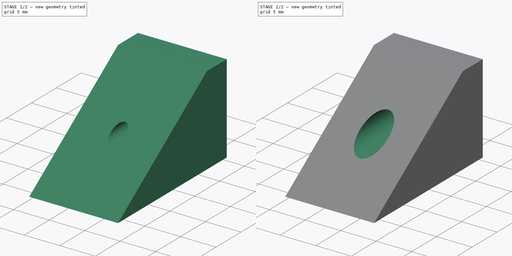
[diagram: build sequence overview — one tinted view per stage of 2, left to right]
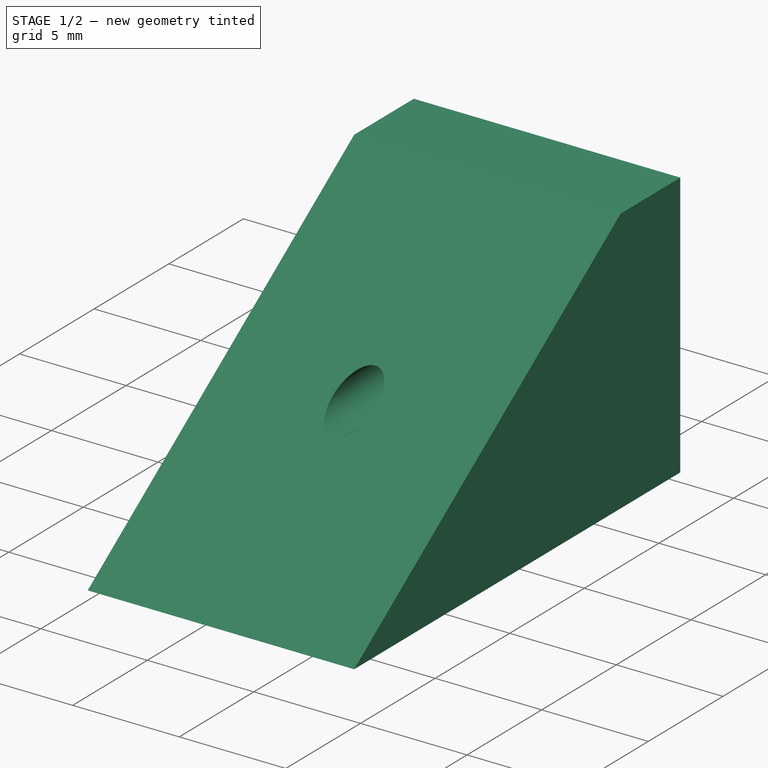
[diagram: stage 1 of 2 — iso view after this stage's code; geometry added in this stage tinted green]
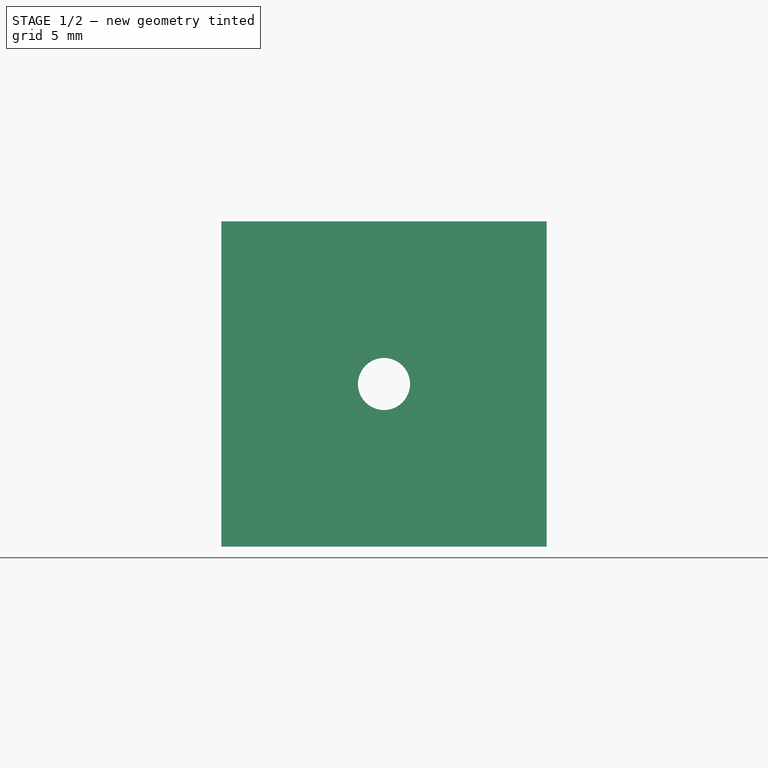
[diagram: stage 1 of 2 — front view after this stage's code; geometry added in this stage tinted green]
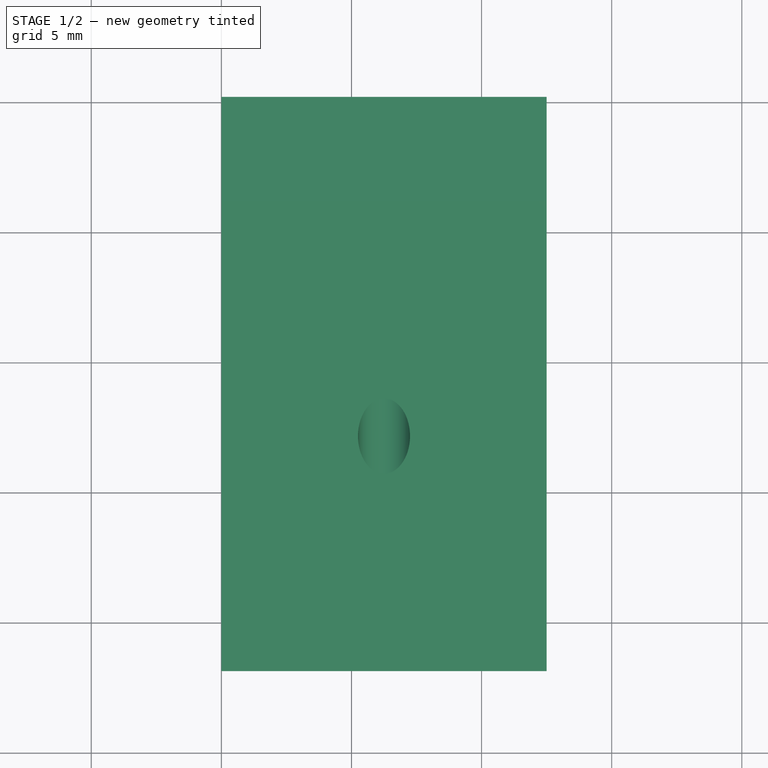
[diagram: stage 1 of 2 — top view after this stage's code; geometry added in this stage tinted green]
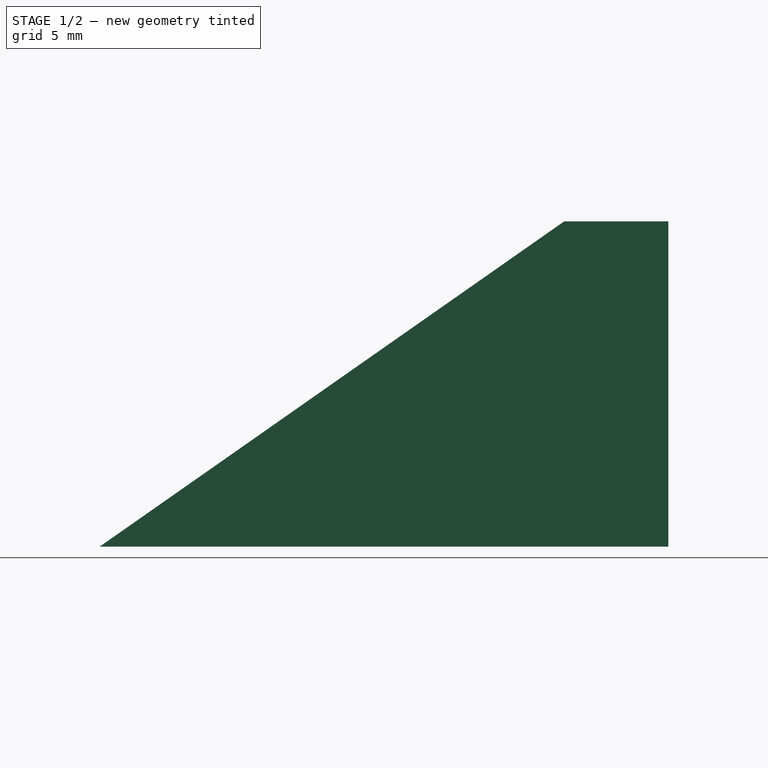
[diagram: stage 1 of 2 — right view after this stage's code; geometry added in this stage tinted green]
FCSTD DOCUMENT  (FreeCAD 1.0R39109 (Git))
Label: mount_bracket
License: All rights reserved
LicenseURL: https://en.wikipedia.org/wiki/All_rights_reserved
objects: Sketcher::SketchObject×3, PartDesign::Pocket×2, Spreadsheet::Sheet×1, PartDesign::Plane×1, PartDesign::Pad×1, PartDesign::Body×1
note: 17 computed .brp shape members not serialized (recipe doc carries the construction recipe); baked Part::Feature solids carry a one-line shape summary decoded from their .brp

FEATURE [Spreadsheet::Sheet] Spreadsheet  label="DisplaySS"
  Configuration = 1
  cells = A1='Variant; B1='threaded_insert_depth; C1='squared_profile_section_length; D1='threaded_insert_outer_diameter; E1='threaded_insert_safety_zone; F1='mount_bracket_face_size; G1='mount_bracket_length; H1='mount_bracket_draft_angle; I1='rear_countersink_offset; J1='rear_countersink_diameter; K1='rear_countersink_depth; A2==hiddenref(.Configuration.String); B2(threaded_insert_depth)==.B4; C2(squared_profile_section_length)==.C4; D2(threaded_insert_outer_diameter)==.D4; E2(threaded_insert_safety_zone)==.E4; F2(mount_bracket_face_size)==.F4; G2(mount_bracket_length)==.G4; H2(mount_bracket_draft_angle)==.H4; I2(rear_countersink_offset)==.I4; J2(rear_countersink_diameter)==.J4; K2(rear_countersink_depth)==.K4; A3='Female; B3==4 mm; C3==threaded_insert_depth; D3==5 mm; E3==2 mm; F3==12.5 mm; G3==mount_bracket_face_size / tan(mount_bracket_draft_angle) + threaded_insert_depth; H3==35 deg; I3==0 mm; J3==threaded_insert_outer_diameter; K3==threaded_insert_depth; A4='Male; B4==50 mm; C4==4 mm; D4==2 mm; E4==1 mm; F4==12.5 mm; G4==mount_bracket_face_size / tan(mount_bracket_draft_angle) + squared_profile_section_length; H4==35 deg; I4==squared_profile_section_length; J4==4 mm; K4==mount_bracket_length
  expr: .Configuration.Enum = cells[<<A3:|>>]
  expr: .cells.Bind.B2.ZZ2 = tuple(.cells; <<B>> + str(hiddenref(Configuration) + 3); <<ZZ>> + str(hiddenref(Configuration) + 3))
FEATURE [Sketcher::SketchObject] Sketch011  label="Threaded Barrel"
  ArcFitTolerance = 1e-06
  AttachmentSupport = -> [XZ_Plane003]
  FullyConstrained = true
  MakeInternals = false
  MapMode = 5
  Placement = pos=(0,0,0) rot=(1,0,0;1.5708rad)
  expr: Constraints[0] = <<DisplaySS>>.threaded_insert_outer_diameter
  expr: Constraints[1] = <<DisplaySS>>.mount_bracket_face_size / 2
  expr: Constraints[2] = <<DisplaySS>>.mount_bracket_face_size / 2
  sketch-geometry (1):
    g0: Circle CenterX=6.25 CenterY=6.25 CenterZ=0 NormalX=0 NormalY=0 NormalZ=1 AngleXU=0 Radius=1
  constraints (3):
    c: Diameter(g0) = 2
    c: DistanceY(g-1,g0) = 6.25
    c: DistanceX(g-2,g0) = 6.25
FEATURE [Sketcher::SketchObject] Sketch010
  ArcFitTolerance = 1e-06
  AttachmentSupport = -> [XY_Plane003]
  FullyConstrained = true
  MakeInternals = false
  MapMode = 4
  Placement = pos=(0,0,0) rot=(0.57735,0.57735,0.57735;2.0944rad)
  expr: Constraints[10] = <<DisplaySS>>.mount_bracket_face_size
  expr: Constraints[8] = <<DisplaySS>>.mount_bracket_draft_angle
  expr: Constraints[9] = <<DisplaySS>>.squared_profile_section_length
  sketch-geometry (4):
    g0: LineSegment StartX=-21.8519 StartY=-1.8e-15 StartZ=0 EndX=0 EndY=0 EndZ=0
    g1: LineSegment StartX=0 StartY=0 StartZ=0 EndX=0 EndY=12.5 EndZ=0
    g2: LineSegment StartX=0 StartY=12.5 StartZ=0 EndX=-4 EndY=12.5 EndZ=0
    g3: LineSegment StartX=-4 StartY=12.5 StartZ=0 EndX=-21.8519 EndY=-1.8e-15 EndZ=0
  constraints (11):
    c: PointOnObject(g0,g-1)
    c: Coincident(g0,g-1)
    c: Coincident(g0,g1)
    c: PointOnObject(g1,g-2)
    c: Coincident(g1,g2)
    c: Horizontal(g2)
    c: Coincident(g2,g3)
    c: Coincident(g3,g0)
    c: Angle(g0,g3) = 0.610865
    c: Distance(g2) = 4
    c: Distance(g1) = 12.5
FEATURE [PartDesign::Plane] DatumPlane  label="CountersinkPlane"
  AttachmentOffset = pos=(0,0,4) rot=(0,0,1;0rad)
  AttachmentSupport = -> [XZ_Plane003]
  Length = 60
  MapMode = 5
  Placement = pos=(0,-4,9e-16) rot=(1,0,0;1.5708rad)
  ResizeMode = 0
  Width = 60
  expr: .AttachmentOffset.Base.z = <<DisplaySS>>.rear_countersink_offset
FEATURE [Sketcher::SketchObject] Sketch  label="CountersinkSketch"
  ArcFitTolerance = 1e-06
  AttachmentSupport = -> [DatumPlane]
  ExternalGeometry = -> [Sketch011]
  FullyConstrained = true
  MakeInternals = false
  MapMode = 5
  Placement = pos=(0,-4,9e-16) rot=(1,0,0;1.5708rad)
  expr: Constraints[1] = <<DisplaySS>>.rear_countersink_diameter
  sketch-geometry (1):
    g0: Circle CenterX=6.25 CenterY=6.25 CenterZ=0 NormalX=0 NormalY=0 NormalZ=1 AngleXU=0 Radius=2
  constraints (2):
    c: Coincident(g0,g-3)
    c: Diameter(g0) = 4
FEATURE [PartDesign::Pad] Pad006
  Direction = (1,0,0)
  Length = 12.5
  Length2 = 10
  Profile = -> Sketch010
  ReferenceAxis = -> Sketch010 [N_Axis]
  Refine = true
  Suppressed = false
  Type = 0
  expr: Length = <<DisplaySS>>.mount_bracket_face_size
FEATURE [PartDesign::Pocket] Pocket015
  BaseFeature = -> Pad006
  Direction = (0,1,-2e-16)
  Length = 50
  Length2 = 5
  Profile = -> Sketch011
  ReferenceAxis = -> Sketch011 [N_Axis]
  Refine = true
  Reversed = true
  Suppressed = false
  Type = 0
  expr: Length = <<DisplaySS>>.threaded_insert_depth
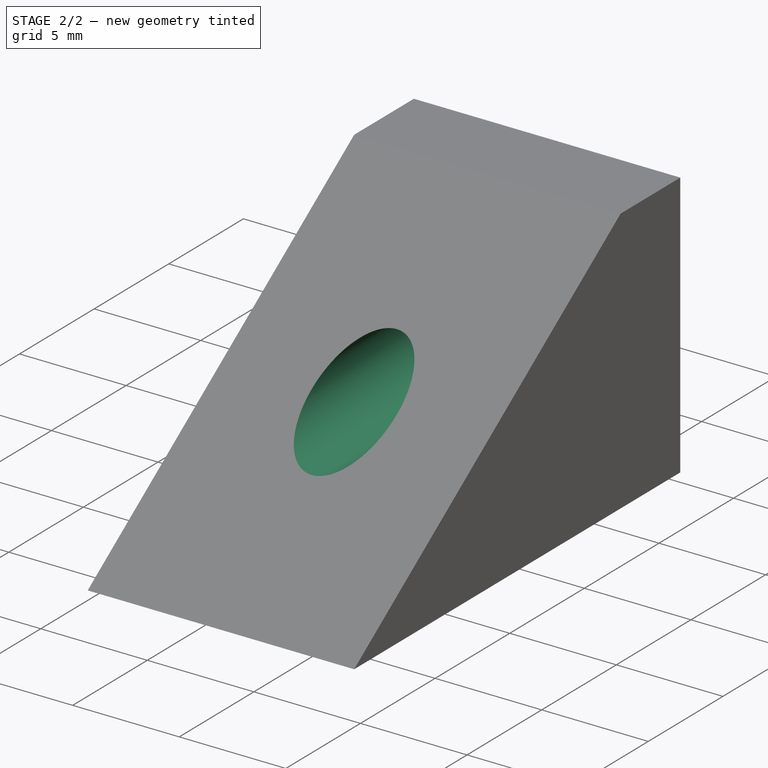
[diagram: stage 2 of 2 — iso view after this stage's code; geometry added in this stage tinted green]
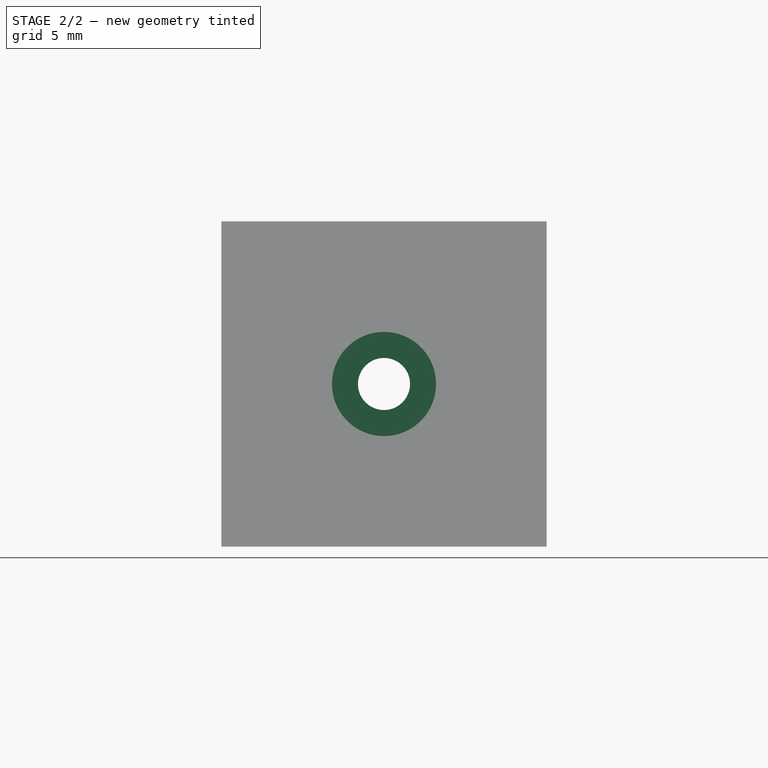
[diagram: stage 2 of 2 — front view after this stage's code; geometry added in this stage tinted green]
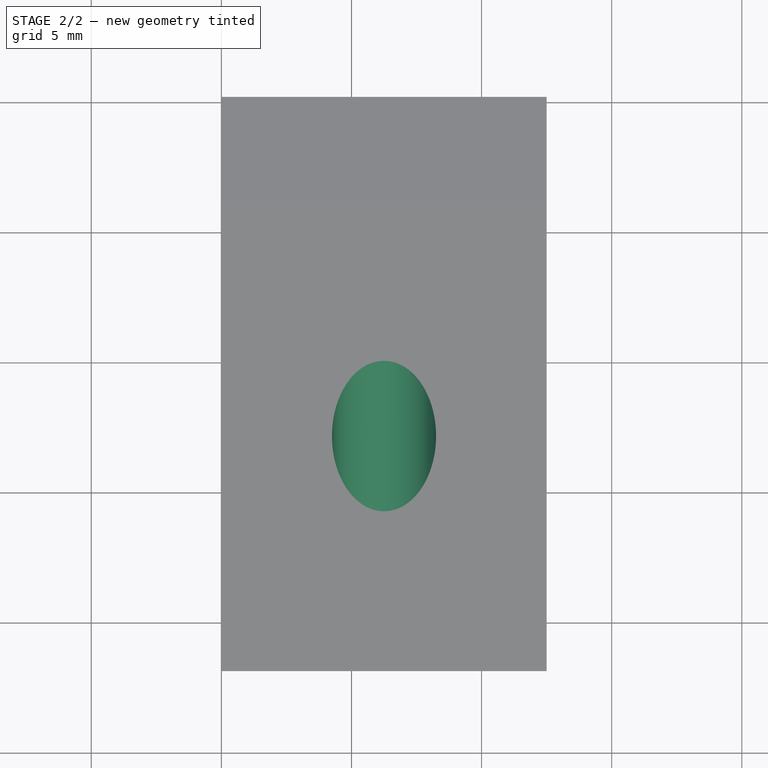
[diagram: stage 2 of 2 — top view after this stage's code; geometry added in this stage tinted green]
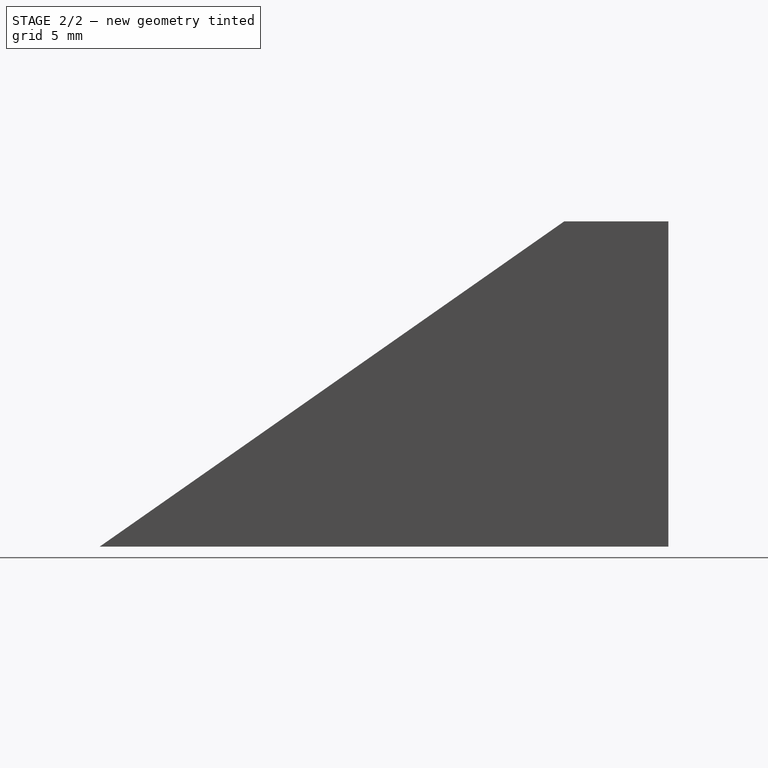
[diagram: stage 2 of 2 — right view after this stage's code; geometry added in this stage tinted green]
FEATURE [PartDesign::Pocket] Pocket
  BaseFeature = -> Pocket015
  Direction = (0,1,-2e-16)
  Length = 21.8519
  Length2 = 5
  Profile = -> Sketch
  ReferenceAxis = -> Sketch [N_Axis]
  Refine = true
  Reversed = true
  Suppressed = false
  Type = 0
  expr: Length = <<DisplaySS>>.rear_countersink_depth
FEATURE [PartDesign::Body] Body003  label="MountBracket"
  AllowCompound = false
  Group = -> [Sketch010,Pad006,Sketch011,Pocket015,Sketch,Pocket,DatumPlane]
  Origin = -> Origin003
  Tip = -> Pocket
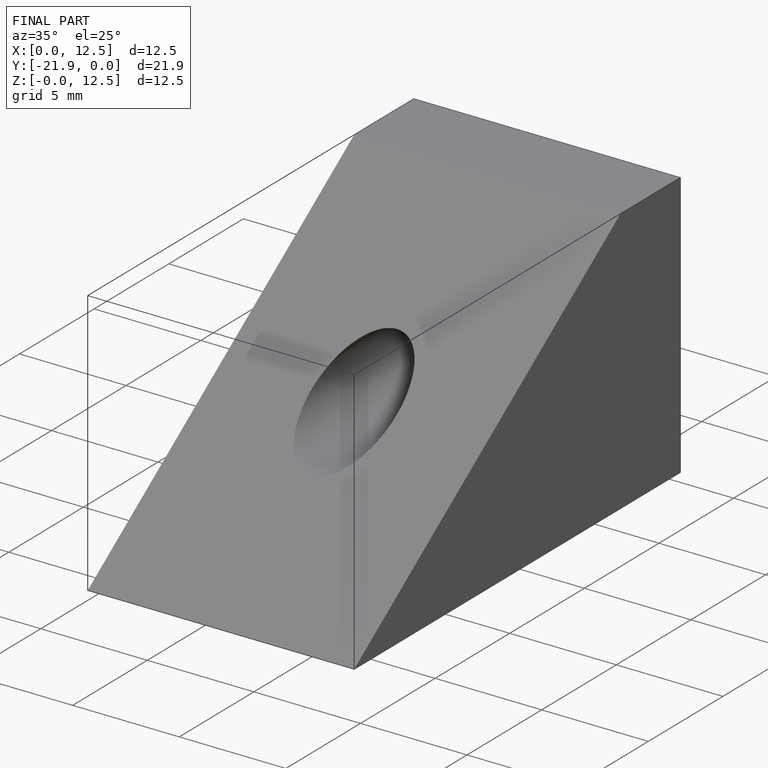
[diagram: finished part — iso view with bounding-box wireframe]
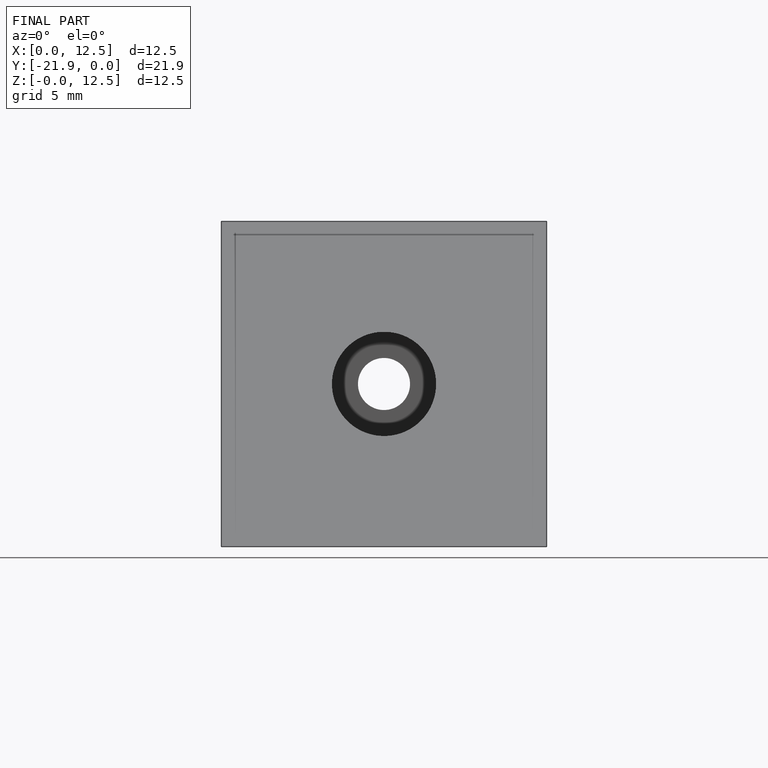
[diagram: finished part — front view with bounding-box wireframe]
